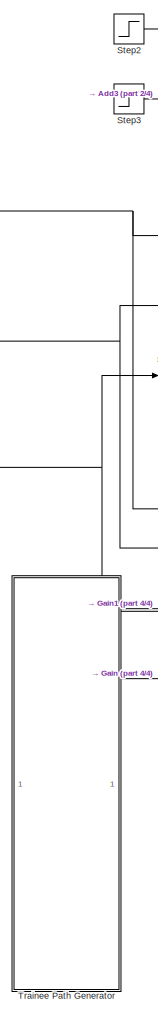
[diagram: root canvas - part 1/4, left side, full height]
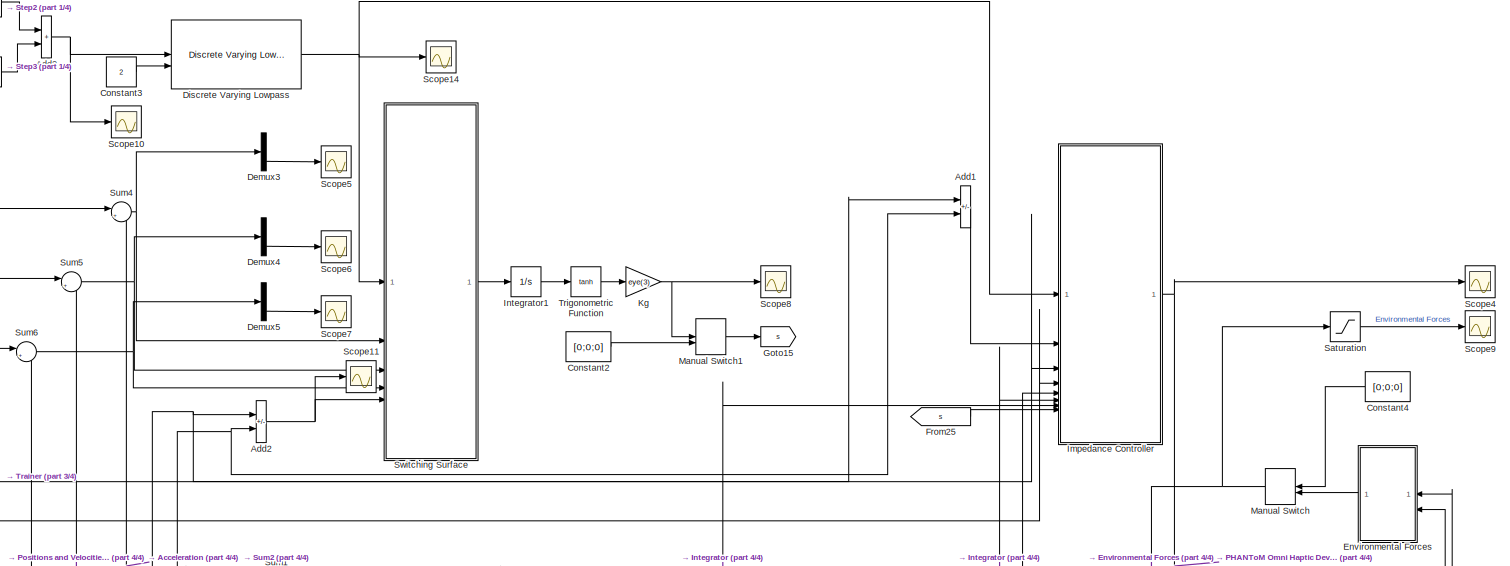
[diagram: root canvas - part 2/4, full width, top band]
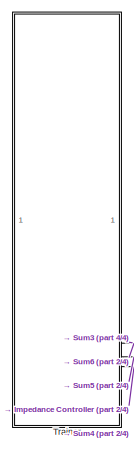
[diagram: root canvas - part 3/4, middle left region]
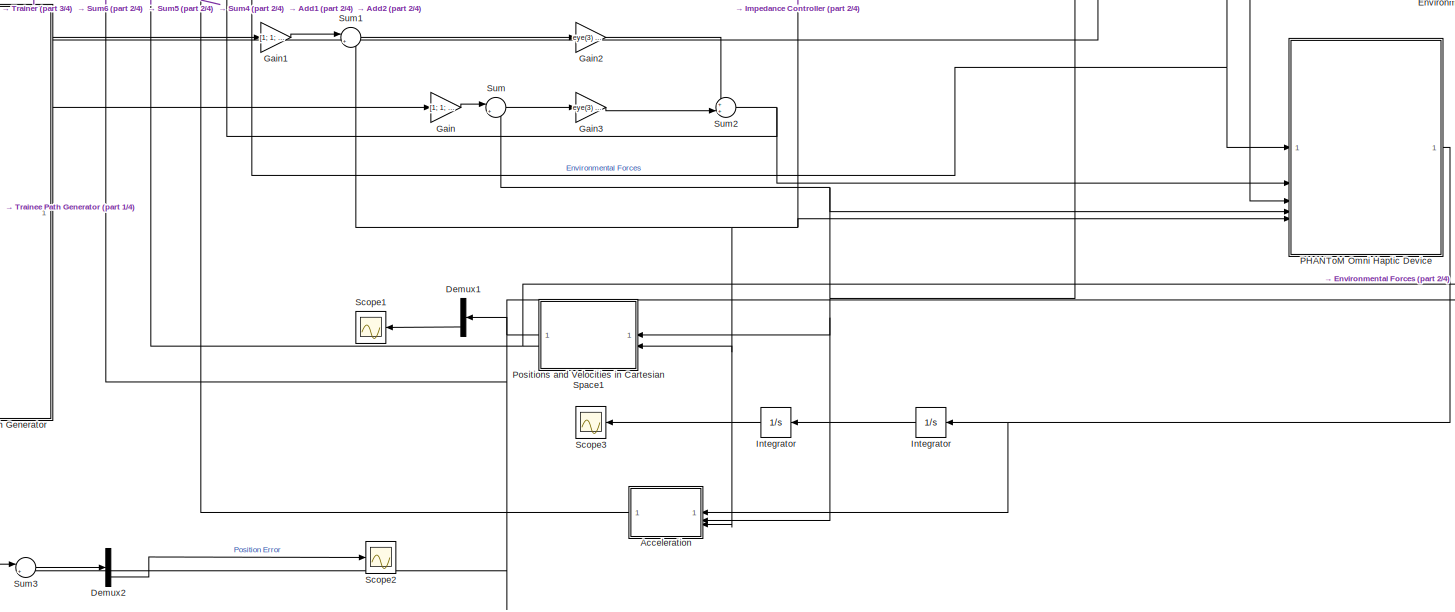
[diagram: root canvas - part 4/4, bottom center region]
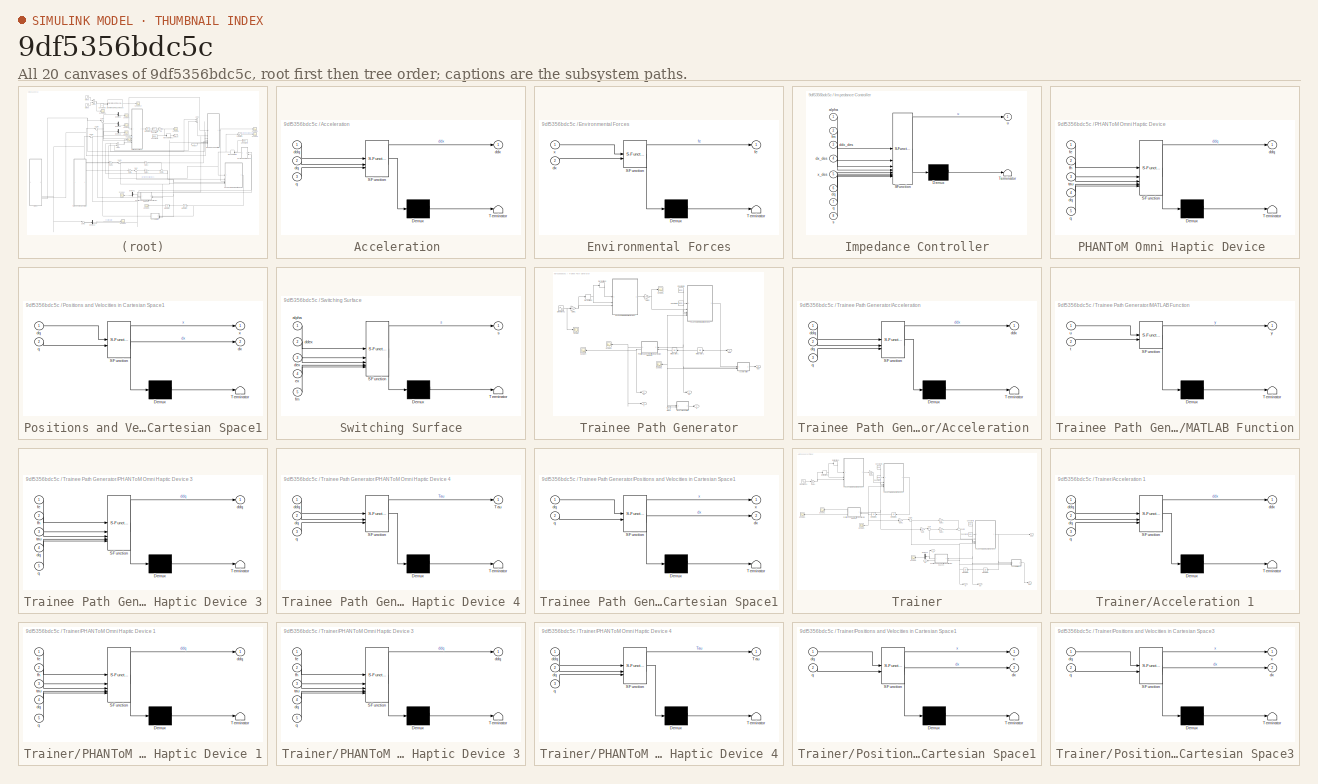
[diagram: thumbnail index - all 20 canvases of the model, root first then tree order]
MODEL slx_9df5356bdc5c
KIND model
CONFIG AbsTol = auto
CONFIG EnableMultiTasking = off
CONFIG FixedStep = auto
CONFIG MaxStep = auto
CONFIG MinStep = auto
CONFIG RelTol = 1e-3
CONFIG SampleTimeConstraint = Unconstrained
CONFIG SolverName = VariableStepAuto
CONFIG StartTime = 0.0
CONFIG StopTime = 5
BLOCK [SubSystem] Acceleration 
  ErrorFcn = Stateflow.Translate.translate
  PermitHierarchicalResolution = ExplicitOnly
  SFBlockType = MATLAB Function
  TreatAsAtomicUnit = on
BLOCK [Demux] Acceleration / Demux 
  Outputs = 1
BLOCK [S-Function] Acceleration / SFunction 
  EnableBusSupport = on
  FunctionName = sf_sfun
  PortCounts = [3 2]
  SFcnIsStateOwnerBlock = off
  SFunctionDeploymentMode = off
  Tag = Stateflow S-Function 2
BLOCK [Terminator] Acceleration / Terminator 
BLOCK [Inport] Acceleration /ddq
BLOCK [Outport] Acceleration /ddx
  VectorParamsAs1DForOutWhenUnconnected = off
BLOCK [Inport] Acceleration /dq
  Port = 2
BLOCK [Inport] Acceleration /q
  Port = 3
BLOCK [Sum] Add1
  IconShape = rectangular
  Inputs = +-
BLOCK [Sum] Add2
  IconShape = rectangular
  Inputs = +-
BLOCK [Sum] Add3
  IconShape = rectangular
BLOCK [Constant] Constant2
  Value = [0;0;0]
BLOCK [Constant] Constant3
  Value = 2
BLOCK [Constant] Constant4
  Value = [0;0;0]
BLOCK [Demux] Demux1
  Outputs = 3
BLOCK [Demux] Demux2
  Outputs = 3
BLOCK [Demux] Demux3
  Outputs = 3
BLOCK [Demux] Demux4
  Outputs = 3
BLOCK [Demux] Demux5
  Outputs = 3
BLOCK [Reference] Discrete Varying Lowpass  REF=cstblocks/Linear Parameter Varying/Discrete Varying Lowpass
  SourceBlock = cstblocks/Linear Parameter Varying/Discrete Varying Lowpass
  SourceType = Discrete Varying Lowpass
BLOCK [SubSystem] Environmental Forces
  ErrorFcn = Stateflow.Translate.translate
  NameLocation = top
  PermitHierarchicalResolution = ExplicitOnly
  SFBlockType = MATLAB Function
  TreatAsAtomicUnit = on
BLOCK [Demux] Environmental Forces/ Demux 
  Outputs = 1
BLOCK [S-Function] Environmental Forces/ SFunction 
  EnableBusSupport = on
  FunctionName = sf_sfun
  PortCounts = [2 2]
  SFcnIsStateOwnerBlock = off
  SFunctionDeploymentMode = off
  Tag = Stateflow S-Function 9
BLOCK [Terminator] Environmental Forces/ Terminator 
BLOCK [Inport] Environmental Forces/dx
  Port = 2
BLOCK [Outport] Environmental Forces/fe
  VectorParamsAs1DForOutWhenUnconnected = off
BLOCK [Inport] Environmental Forces/x
BLOCK [From] From25
  GotoTag = s
BLOCK [Gain] Gain
  Gain = [1; 1; 1]
BLOCK [Gain] Gain1
  Gain = [1; 1; 1]
BLOCK [Gain] Gain2
  Gain = eye(3) * 0.05
  Multiplication = Matrix(K*u)
BLOCK [Gain] Gain3
  Gain = eye(3) * 0.01
  Multiplication = Matrix(K*u)
BLOCK [Goto] Goto15
  GotoTag = s
BLOCK [SubSystem] Impedance Controller
  ErrorFcn = Stateflow.Translate.translate
  PermitHierarchicalResolution = ExplicitOnly
  SFBlockType = MATLAB Function
  TreatAsAtomicUnit = on
BLOCK [Demux] Impedance Controller/ Demux 
  Outputs = 1
BLOCK [S-Function] Impedance Controller/ SFunction 
  EnableBusSupport = on
  FunctionName = sf_sfun
  PortCounts = [8 2]
  SFcnIsStateOwnerBlock = off
  SFunctionDeploymentMode = off
  Tag = Stateflow S-Function 13
BLOCK [Terminator] Impedance Controller/ Terminator 
BLOCK [Inport] Impedance Controller/alpha
BLOCK [Inport] Impedance Controller/ddx_des
  Port = 3
BLOCK [Inport] Impedance Controller/dq
  Port = 6
BLOCK [Inport] Impedance Controller/dx_des
  Port = 4
BLOCK [Inport] Impedance Controller/fm
  Port = 2
BLOCK [Inport] Impedance Controller/q
  Port = 7
BLOCK [Inport] Impedance Controller/s
  Port = 8
BLOCK [Outport] Impedance Controller/u
  VectorParamsAs1DForOutWhenUnconnected = off
BLOCK [Inport] Impedance Controller/x_des
  Port = 5
BLOCK [Integrator] Integrator
  InitialCondition = [0;0;0]
BLOCK [Integrator] Integrator 
  InitialCondition = [-0.1746    0.7011    0.5365]'
BLOCK [Integrator] Integrator1
  InitialCondition = [0;0;0]
BLOCK [Gain] Kg
  Gain = eye(3)
  Multiplication = Matrix(K*u)
BLOCK [ManualSwitch] Manual Switch
  CurrentSetting = 0
BLOCK [ManualSwitch] Manual Switch1
BLOCK [SubSystem] PHANToM Omni Haptic Device 
  ErrorFcn = Stateflow.Translate.translate
  PermitHierarchicalResolution = ExplicitOnly
  SFBlockType = MATLAB Function
  TreatAsAtomicUnit = on
BLOCK [Demux] PHANToM Omni Haptic Device / Demux 
  Outputs = 1
BLOCK [S-Function] PHANToM Omni Haptic Device / SFunction 
  EnableBusSupport = on
  FunctionName = sf_sfun
  PortCounts = [5 2]
  SFcnIsStateOwnerBlock = off
  SFunctionDeploymentMode = off
  Tag = Stateflow S-Function 11
BLOCK [Terminator] PHANToM Omni Haptic Device / Terminator 
BLOCK [Outport] PHANToM Omni Haptic Device /ddq
  VectorParamsAs1DForOutWhenUnconnected = off
BLOCK [Inport] PHANToM Omni Haptic Device /dq
  Port = 4
BLOCK [Inport] PHANToM Omni Haptic Device /fe
BLOCK [Inport] PHANToM Omni Haptic Device /fh
  Port = 2
BLOCK [Inport] PHANToM Omni Haptic Device /q
  Port = 5
BLOCK [Inport] PHANToM Omni Haptic Device /tau
  Port = 3
BLOCK [SubSystem] Positions and Velocities in Cartesian Space1
  ErrorFcn = Stateflow.Translate.translate
  PermitHierarchicalResolution = ExplicitOnly
  SFBlockType = MATLAB Function
  TreatAsAtomicUnit = on
BLOCK [Demux] Positions and Velocities in Cartesian Space1/ Demux 
  Outputs = 1
BLOCK [S-Function] Positions and Velocities in Cartesian Space1/ SFunction 
  EnableBusSupport = on
  FunctionName = sf_sfun
  PortCounts = [2 3]
  SFcnIsStateOwnerBlock = off
  SFunctionDeploymentMode = off
  Tag = Stateflow S-Function 4
BLOCK [Terminator] Positions and Velocities in Cartesian Space1/ Terminator 
BLOCK [Inport] Positions and Velocities in Cartesian Space1/dq
BLOCK [Outport] Positions and Velocities in Cartesian Space1/dx
  Port = 2
  VectorParamsAs1DForOutWhenUnconnected = off
BLOCK [Inport] Positions and Velocities in Cartesian Space1/q
  Port = 2
BLOCK [Outport] Positions and Velocities in Cartesian Space1/x
  VectorParamsAs1DForOutWhenUnconnected = off
BLOCK [Saturate] Saturation
  LowerLimit = 0
BLOCK [Scope] Scope1
  Floating = off
  NumInputPorts = 1
  ScopeSpecificationString = Simulink.scopes.TimeScopeBlockCfg('CurrentConfiguration', extmgr.ConfigurationSet(extmgr.Configuration('Core','General UI',true),extmgr.Configuration('Core','Source UI',true),extmgr.Configuration('Sources','WiredSimulink',true,'DataLoggingVariableName','ScopeData3'),extmgr.Configuration('Visuals','Time Domain',true,'SerializedDisplays',{struct('MinYLimReal','-0.11938','MaxYLimReal','0.03444','YLab...<+1390ch>
BLOCK [Scope] Scope10
  Floating = off
  NumInputPorts = 1
  ScopeSpecificationString = Simulink.scopes.TimeScopeBlockCfg('CurrentConfiguration', extmgr.ConfigurationSet(extmgr.Configuration('Core','General UI',true),extmgr.Configuration('Core','Source UI',true),extmgr.Configuration('Sources','WiredSimulink',true,'DataLoggingVariableName','ScopeData2'),extmgr.Configuration('Visuals','Time Domain',true,'SerializedDisplays',{struct('MinYLimReal','-0.125','MaxYLimReal','1.125','YLabelRe...<+1351ch>
BLOCK [Scope] Scope11
  Floating = off
  NumInputPorts = 1
  ScopeSpecificationString = Simulink.scopes.TimeScopeBlockCfg('CurrentConfiguration', extmgr.ConfigurationSet(extmgr.Configuration('Core','General UI',true),extmgr.Configuration('Core','Source UI',true),extmgr.Configuration('Sources','WiredSimulink',true,'DataLoggingVariableName','ScopeData1'),extmgr.Configuration('Visuals','Time Domain',true,'SerializedDisplays',{struct('MinYLimReal','-0.30248','MaxYLimReal','0.59028','YLab...<+1477ch>
BLOCK [Scope] Scope14
  Floating = off
  NumInputPorts = 1
  ScopeSpecificationString = Simulink.scopes.TimeScopeBlockCfg('CurrentConfiguration', extmgr.ConfigurationSet(extmgr.Configuration('Core','General UI',true),extmgr.Configuration('Core','Source UI',true),extmgr.Configuration('Sources','WiredSimulink',true,'DataLoggingVariableName','ScopeData4'),extmgr.Configuration('Visuals','Time Domain',true,'SerializedDisplays',{struct('MinYLimReal','-0.12271','MaxYLimReal','1.10437','YLab...<+1383ch>
BLOCK [Scope] Scope2
  Floating = off
  NumInputPorts = 1
  ScopeSpecificationString = Simulink.scopes.TimeScopeBlockCfg('CurrentConfiguration', extmgr.ConfigurationSet(extmgr.Configuration('Core','General UI',true),extmgr.Configuration('Core','Source UI',true),extmgr.Configuration('Sources','WiredSimulink',true,'DataLoggingVariableName','ScopeData5'),extmgr.Configuration('Visuals','Time Domain',true,'SerializedDisplays',{struct('MinYLimReal','-0.01061','MaxYLimReal','0.00911','YLab...<+1396ch>
BLOCK [Scope] Scope3
  Floating = off
  NumInputPorts = 1
  ScopeSpecificationString = Simulink.scopes.TimeScopeBlockCfg('CurrentConfiguration', extmgr.ConfigurationSet(extmgr.Configuration('Core','General UI',true),extmgr.Configuration('Core','Source UI',true),extmgr.Configuration('Sources','WiredSimulink',true,'DataLoggingVariableName','ScopeData6'),extmgr.Configuration('Visuals','Time Domain',true,'SerializedDisplays',{struct('MinYLimReal','-0.67482','MaxYLimReal','0.89016','YLab...<+1429ch>
BLOCK [Scope] Scope4
  Floating = off
  NumInputPorts = 1
  ScopeSpecificationString = Simulink.scopes.TimeScopeBlockCfg('CurrentConfiguration', extmgr.ConfigurationSet(extmgr.Configuration('Core','General UI',true),extmgr.Configuration('Core','Source UI',true),extmgr.Configuration('Sources','WiredSimulink',true,'DataLoggingVariableName','ScopeData7'),extmgr.Configuration('Visuals','Time Domain',true,'SerializedDisplays',{struct('MinYLimReal','-2.37086','MaxYLimReal','2.2654','YLabe...<+1568ch>
BLOCK [Scope] Scope5
  Floating = off
  NumInputPorts = 1
  ScopeSpecificationString = Simulink.scopes.TimeScopeBlockCfg('CurrentConfiguration', extmgr.ConfigurationSet(extmgr.Configuration('Core','General UI',true),extmgr.Configuration('Core','Source UI',true),extmgr.Configuration('Sources','WiredSimulink',true,'DataLoggingVariableName','ScopeData8'),extmgr.Configuration('Visuals','Time Domain',true,'SerializedDisplays',{struct('MinYLimReal','-105.90779','MaxYLimReal','60.21955','Y...<+1450ch>
BLOCK [Scope] Scope6
  Floating = off
  NumInputPorts = 1
  ScopeSpecificationString = Simulink.scopes.TimeScopeBlockCfg('CurrentConfiguration', extmgr.ConfigurationSet(extmgr.Configuration('Core','General UI',true),extmgr.Configuration('Core','Source UI',true),extmgr.Configuration('Sources','WiredSimulink',true,'DataLoggingVariableName','ScopeData9'),extmgr.Configuration('Visuals','Time Domain',true,'SerializedDisplays',{struct('MinYLimReal','-0.74603','MaxYLimReal','0.43543','YLab...<+1419ch>
BLOCK [Scope] Scope7
  Floating = off
  NumInputPorts = 1
  ScopeSpecificationString = Simulink.scopes.TimeScopeBlockCfg('CurrentConfiguration', extmgr.ConfigurationSet(extmgr.Configuration('Core','General UI',true),extmgr.Configuration('Core','Source UI',true),extmgr.Configuration('Sources','WiredSimulink',true,'DataLoggingVariableName','ScopeData10'),extmgr.Configuration('Visuals','Time Domain',true,'SerializedDisplays',{struct('MinYLimReal','-0.01061','MaxYLimReal','0.00911','YLa...<+1420ch>
BLOCK [Scope] Scope8
  Floating = off
  NumInputPorts = 1
  ScopeSpecificationString = Simulink.scopes.TimeScopeBlockCfg('CurrentConfiguration', extmgr.ConfigurationSet(extmgr.Configuration('Core','General UI',true),extmgr.Configuration('Core','Source UI',true),extmgr.Configuration('Sources','WiredSimulink',true,'DataLoggingVariableName','ScopeData11'),extmgr.Configuration('Visuals','Time Domain',true,'SerializedDisplays',{struct('MinYLimReal','-1.25','MaxYLimReal','1.25','YLabelRea...<+1431ch>
BLOCK [Scope] Scope9
  Floating = off
  NumInputPorts = 1
  ScopeSpecificationString = Simulink.scopes.TimeScopeBlockCfg('CurrentConfiguration', extmgr.ConfigurationSet(extmgr.Configuration('Core','General UI',true),extmgr.Configuration('Core','Source UI',true),extmgr.Configuration('Sources','WiredSimulink',true,'DataLoggingVariableName','ScopeData12'),extmgr.Configuration('Visuals','Time Domain',true,'SerializedDisplays',{struct('MinYLimReal','-0.23513','MaxYLimReal','0.24562','YLa...<+1651ch>
BLOCK [Step] Step2
  SampleTime = 0
BLOCK [Step] Step3
  After = -1
  SampleTime = 0
  Time = 3
BLOCK [Sum] Sum
  Inputs = |+-
BLOCK [Sum] Sum1
  Inputs = |+-
BLOCK [Sum] Sum2
  Inputs = ++|
BLOCK [Sum] Sum3
  Inputs = |+-
BLOCK [Sum] Sum4
  Inputs = |+-
BLOCK [Sum] Sum5
  Inputs = |+-
BLOCK [Sum] Sum6
  Inputs = |+-
BLOCK [SubSystem] Switching Surface
  ErrorFcn = Stateflow.Translate.translate
  PermitHierarchicalResolution = ExplicitOnly
  SFBlockType = MATLAB Function
  TreatAsAtomicUnit = on
BLOCK [Demux] Switching Surface/ Demux 
  Outputs = 1
BLOCK [S-Function] Switching Surface/ SFunction 
  EnableBusSupport = on
  FunctionName = sf_sfun
  PortCounts = [5 2]
  SFcnIsStateOwnerBlock = off
  SFunctionDeploymentMode = off
  Tag = Stateflow S-Function 18
BLOCK [Terminator] Switching Surface/ Terminator 
BLOCK [Inport] Switching Surface/alpha
BLOCK [Inport] Switching Surface/ddex
  Port = 2
BLOCK [Inport] Switching Surface/dex
  Port = 3
BLOCK [Inport] Switching Surface/ex
  Port = 4
BLOCK [Inport] Switching Surface/fm
  Port = 5
BLOCK [Outport] Switching Surface/s
  VectorParamsAs1DForOutWhenUnconnected = off
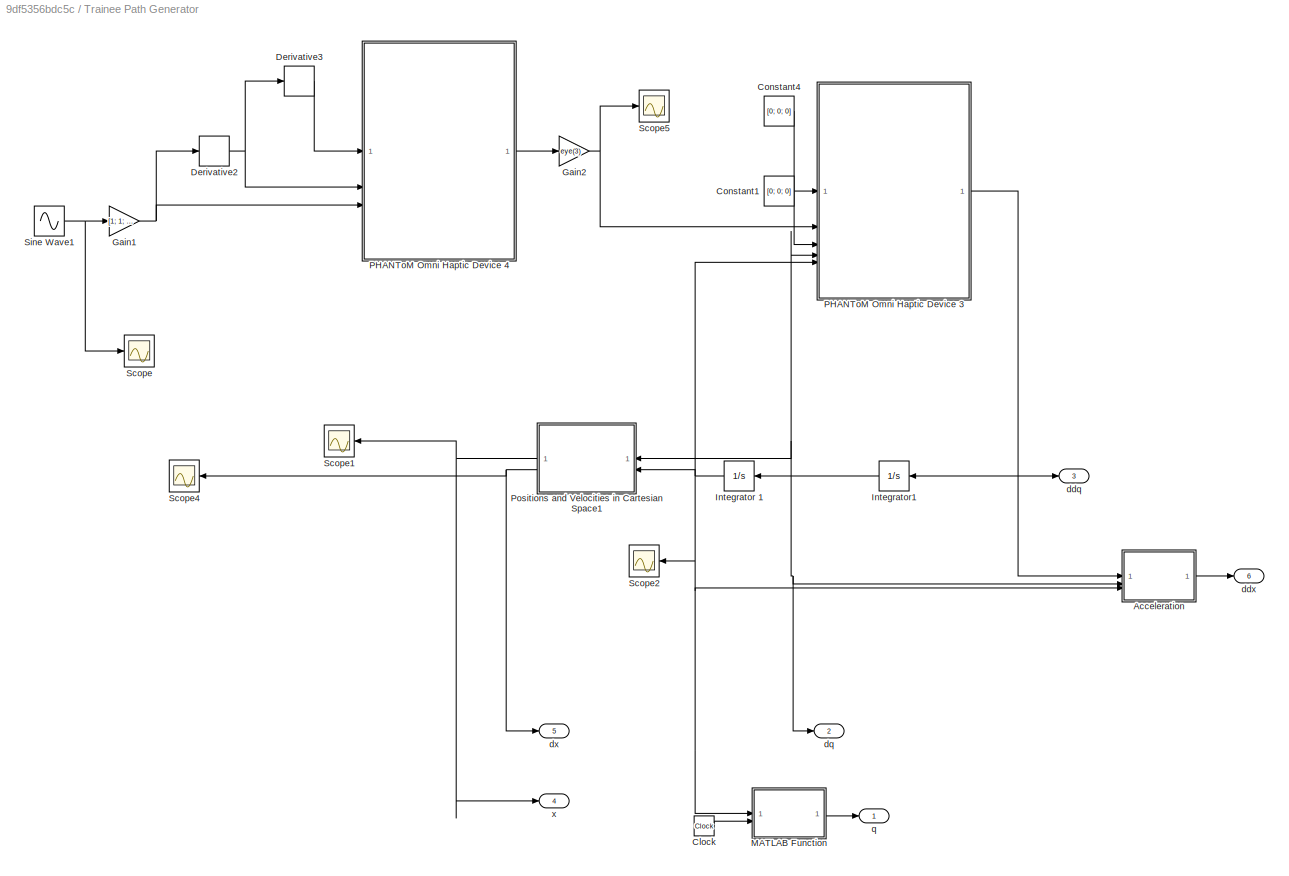
BLOCK [SubSystem] Trainee Path Generator
BLOCK [SubSystem] Trainee Path Generator/Acceleration 
  ErrorFcn = Stateflow.Translate.translate
  PermitHierarchicalResolution = ExplicitOnly
  SFBlockType = MATLAB Function
  TreatAsAtomicUnit = on
BLOCK [Demux] Trainee Path Generator/Acceleration / Demux 
  Outputs = 1
BLOCK [S-Function] Trainee Path Generator/Acceleration / SFunction 
  EnableBusSupport = on
  FunctionName = sf_sfun
  PortCounts = [3 2]
  SFcnIsStateOwnerBlock = off
  SFunctionDeploymentMode = off
  Tag = Stateflow S-Function 5
BLOCK [Terminator] Trainee Path Generator/Acceleration / Terminator 
BLOCK [Inport] Trainee Path Generator/Acceleration /ddq
BLOCK [Outport] Trainee Path Generator/Acceleration /ddx
  VectorParamsAs1DForOutWhenUnconnected = off
BLOCK [Inport] Trainee Path Generator/Acceleration /dq
  Port = 2
BLOCK [Inport] Trainee Path Generator/Acceleration /q
  Port = 3
BLOCK [Clock] Trainee Path Generator/Clock
BLOCK [Constant] Trainee Path Generator/Constant1
  Value = [0; 0; 0]
BLOCK [Constant] Trainee Path Generator/Constant4
  Value = [0; 0; 0]
BLOCK [Derivative] Trainee Path Generator/Derivative2
BLOCK [Derivative] Trainee Path Generator/Derivative3
BLOCK [Gain] Trainee Path Generator/Gain1
  Gain = [1; 1; 1]
BLOCK [Gain] Trainee Path Generator/Gain2
  Gain = eye(3)
  Multiplication = Matrix(K*u)
BLOCK [Integrator] Trainee Path Generator/Integrator 1
  InitialCondition = [-0.1746    0.7011    0.5365]'
BLOCK [Integrator] Trainee Path Generator/Integrator1
  InitialCondition = [0;0;0]
BLOCK [SubSystem] Trainee Path Generator/MATLAB Function
  ErrorFcn = Stateflow.Translate.translate
  PermitHierarchicalResolution = ExplicitOnly
  SFBlockType = MATLAB Function
  TreatAsAtomicUnit = on
BLOCK [Demux] Trainee Path Generator/MATLAB Function/ Demux 
  Outputs = 1
BLOCK [S-Function] Trainee Path Generator/MATLAB Function/ SFunction 
  EnableBusSupport = on
  FunctionName = sf_sfun
  PortCounts = [2 2]
  SFcnIsStateOwnerBlock = off
  SFunctionDeploymentMode = off
  Tag = Stateflow S-Function 10
BLOCK [Terminator] Trainee Path Generator/MATLAB Function/ Terminator 
BLOCK [Inport] Trainee Path Generator/MATLAB Function/t
  Port = 2
BLOCK [Inport] Trainee Path Generator/MATLAB Function/u
BLOCK [Outport] Trainee Path Generator/MATLAB Function/y
  VectorParamsAs1DForOutWhenUnconnected = off
BLOCK [SubSystem] Trainee Path Generator/PHANToM Omni Haptic Device 3
  ErrorFcn = Stateflow.Translate.translate
  PermitHierarchicalResolution = ExplicitOnly
  SFBlockType = MATLAB Function
  TreatAsAtomicUnit = on
BLOCK [Demux] Trainee Path Generator/PHANToM Omni Haptic Device 3/ Demux 
  Outputs = 1
BLOCK [S-Function] Trainee Path Generator/PHANToM Omni Haptic Device 3/ SFunction 
  EnableBusSupport = on
  FunctionName = sf_sfun
  PortCounts = [5 2]
  SFcnIsStateOwnerBlock = off
  SFunctionDeploymentMode = off
  Tag = Stateflow S-Function 14
BLOCK [Terminator] Trainee Path Generator/PHANToM Omni Haptic Device 3/ Terminator 
BLOCK [Outport] Trainee Path Generator/PHANToM Omni Haptic Device 3/ddq
  VectorParamsAs1DForOutWhenUnconnected = off
BLOCK [Inport] Trainee Path Generator/PHANToM Omni Haptic Device 3/dq
  Port = 4
BLOCK [Inport] Trainee Path Generator/PHANToM Omni Haptic Device 3/fe
BLOCK [Inport] Trainee Path Generator/PHANToM Omni Haptic Device 3/fh
  Port = 2
BLOCK [Inport] Trainee Path Generator/PHANToM Omni Haptic Device 3/q
  Port = 5
BLOCK [Inport] Trainee Path Generator/PHANToM Omni Haptic Device 3/tau
  Port = 3
BLOCK [SubSystem] Trainee Path Generator/PHANToM Omni Haptic Device 4
  ErrorFcn = Stateflow.Translate.translate
  PermitHierarchicalResolution = ExplicitOnly
  SFBlockType = MATLAB Function
  TreatAsAtomicUnit = on
BLOCK [Demux] Trainee Path Generator/PHANToM Omni Haptic Device 4/ Demux 
  Outputs = 1
BLOCK [S-Function] Trainee Path Generator/PHANToM Omni Haptic Device 4/ SFunction 
  EnableBusSupport = on
  FunctionName = sf_sfun
  PortCounts = [3 2]
  SFcnIsStateOwnerBlock = off
  SFunctionDeploymentMode = off
  Tag = Stateflow S-Function 15
BLOCK [Terminator] Trainee Path Generator/PHANToM Omni Haptic Device 4/ Terminator 
BLOCK [Outport] Trainee Path Generator/PHANToM Omni Haptic Device 4/Tau
  VectorParamsAs1DForOutWhenUnconnected = off
BLOCK [Inport] Trainee Path Generator/PHANToM Omni Haptic Device 4/ddq
BLOCK [Inport] Trainee Path Generator/PHANToM Omni Haptic Device 4/dq
  Port = 2
BLOCK [Inport] Trainee Path Generator/PHANToM Omni Haptic Device 4/q
  Port = 3
BLOCK [SubSystem] Trainee Path Generator/Positions and Velocities in Cartesian Space1
  ErrorFcn = Stateflow.Translate.translate
  PermitHierarchicalResolution = ExplicitOnly
  SFBlockType = MATLAB Function
  TreatAsAtomicUnit = on
BLOCK [Demux] Trainee Path Generator/Positions and Velocities in Cartesian Space1/ Demux 
  Outputs = 1
BLOCK [S-Function] Trainee Path Generator/Positions and Velocities in Cartesian Space1/ SFunction 
  EnableBusSupport = on
  FunctionName = sf_sfun
  PortCounts = [2 3]
  SFcnIsStateOwnerBlock = off
  SFunctionDeploymentMode = off
  Tag = Stateflow S-Function 8
BLOCK [Terminator] Trainee Path Generator/Positions and Velocities in Cartesian Space1/ Terminator 
BLOCK [Inport] Trainee Path Generator/Positions and Velocities in Cartesian Space1/dq
BLOCK [Outport] Trainee Path Generator/Positions and Velocities in Cartesian Space1/dx
  Port = 2
  VectorParamsAs1DForOutWhenUnconnected = off
BLOCK [Inport] Trainee Path Generator/Positions and Velocities in Cartesian Space1/q
  Port = 2
BLOCK [Outport] Trainee Path Generator/Positions and Velocities in Cartesian Space1/x
  VectorParamsAs1DForOutWhenUnconnected = off
BLOCK [Scope] Trainee Path Generator/Scope
  Floating = off
  NumInputPorts = 1
  ScopeSpecificationString = Simulink.scopes.TimeScopeBlockCfg('CurrentConfiguration', extmgr.ConfigurationSet(extmgr.Configuration('Core','General UI',true),extmgr.Configuration('Core','Source UI',true),extmgr.Configuration('Sources','WiredSimulink',true,'DataLoggingVariableName','ScopeData1'),extmgr.Configuration('Visuals','Time Domain',true,'SerializedDisplays',{struct('MinYLimReal','-0.00125','MaxYLimReal','0.01125','YLab...<+1367ch>
BLOCK [Scope] Trainee Path Generator/Scope1
  Floating = off
  NumInputPorts = 1
  ScopeSpecificationString = Simulink.scopes.TimeScopeBlockCfg('CurrentConfiguration', extmgr.ConfigurationSet(extmgr.Configuration('Core','General UI',true),extmgr.Configuration('Core','Source UI',true),extmgr.Configuration('Sources','WiredSimulink',true,'DataLoggingVariableName','ScopeData2'),extmgr.Configuration('Visuals','Time Domain',true,'SerializedDisplays',{struct('MinYLimReal','-0.20847','MaxYLimReal','0.05599','YLab...<+1535ch>
BLOCK [Scope] Trainee Path Generator/Scope2
  Floating = off
  NumInputPorts = 1
  ScopeSpecificationString = Simulink.scopes.TimeScopeBlockCfg('CurrentConfiguration', extmgr.ConfigurationSet(extmgr.Configuration('Core','General UI',true),extmgr.Configuration('Core','Source UI',true),extmgr.Configuration('Sources','WiredSimulink',true,'DataLoggingVariableName','ScopeData3'),extmgr.Configuration('Visuals','Time Domain',true,'SerializedDisplays',{struct('MinYLimReal','-0.80527','MaxYLimReal','0.86848','YLab...<+1432ch>
BLOCK [Scope] Trainee Path Generator/Scope4
  Floating = off
  NumInputPorts = 1
  ScopeSpecificationString = Simulink.scopes.TimeScopeBlockCfg('CurrentConfiguration', extmgr.ConfigurationSet(extmgr.Configuration('Core','General UI',true),extmgr.Configuration('Core','Source UI',true),extmgr.Configuration('Sources','WiredSimulink',true,'DataLoggingVariableName','ScopeData1'),extmgr.Configuration('Visuals','Time Domain',true,'SerializedDisplays',{struct('MinYLimReal','-0.1443','MaxYLimReal','0.05151','YLabe...<+1533ch>
BLOCK [Scope] Trainee Path Generator/Scope5
  Floating = off
  NumInputPorts = 1
  ScopeSpecificationString = Simulink.scopes.TimeScopeBlockCfg('CurrentConfiguration', extmgr.ConfigurationSet(extmgr.Configuration('Core','General UI',true),extmgr.Configuration('Core','Source UI',true),extmgr.Configuration('Sources','WiredSimulink',true,'DataLoggingVariableName','ScopeData5'),extmgr.Configuration('Visuals','Time Domain',true,'SerializedDisplays',{struct('MinYLimReal','-88424031071073597010207569927262117716...<+3867ch>
BLOCK [Sin] Trainee Path Generator/Sine Wave1
  Amplitude = 0.01
  Frequency = 0.5
  SampleTime = 0
BLOCK [Outport] Trainee Path Generator/ddq
  Port = 3
  VectorParamsAs1DForOutWhenUnconnected = off
BLOCK [Outport] Trainee Path Generator/ddx
  Port = 6
  VectorParamsAs1DForOutWhenUnconnected = off
BLOCK [Outport] Trainee Path Generator/dq
  Port = 2
  VectorParamsAs1DForOutWhenUnconnected = off
BLOCK [Outport] Trainee Path Generator/dx
  Port = 5
  VectorParamsAs1DForOutWhenUnconnected = off
BLOCK [Outport] Trainee Path Generator/q
  VectorParamsAs1DForOutWhenUnconnected = off
BLOCK [Outport] Trainee Path Generator/x
  Port = 4
  VectorParamsAs1DForOutWhenUnconnected = off
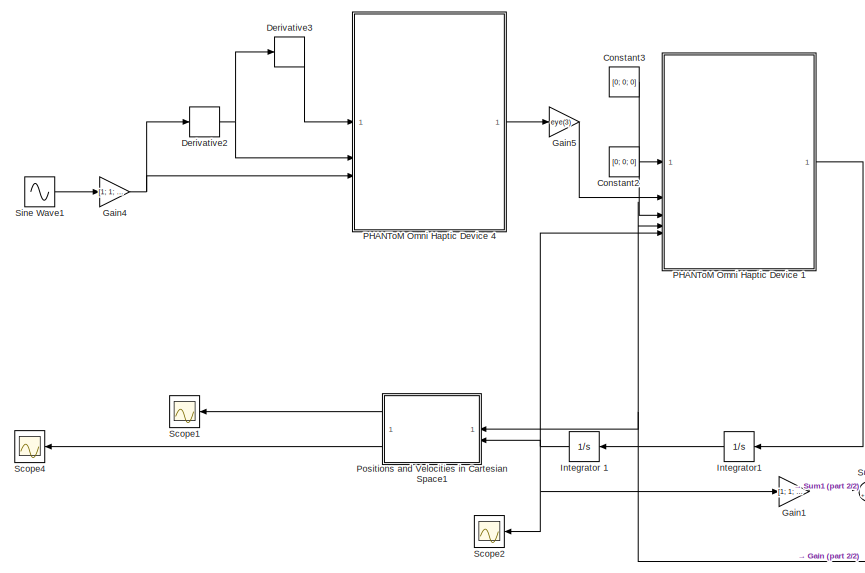
[diagram: Trainer - part 1/2, top left region]
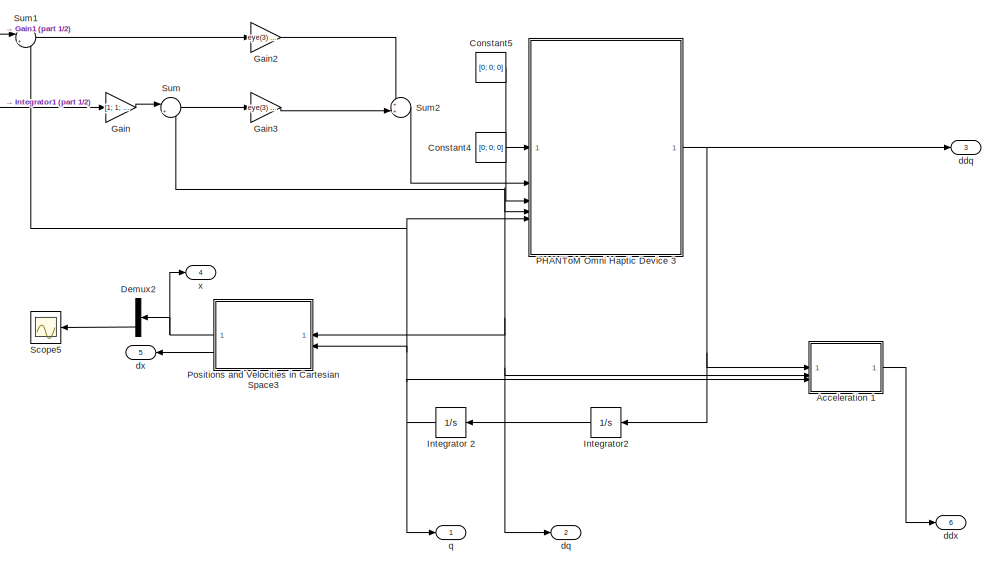
[diagram: Trainer - part 2/2, bottom right region]
BLOCK [SubSystem] Trainer
BLOCK [SubSystem] Trainer/Acceleration 1
  ErrorFcn = Stateflow.Translate.translate
  PermitHierarchicalResolution = ExplicitOnly
  SFBlockType = MATLAB Function
  TreatAsAtomicUnit = on
BLOCK [Demux] Trainer/Acceleration 1/ Demux 
  Outputs = 1
BLOCK [S-Function] Trainer/Acceleration 1/ SFunction 
  EnableBusSupport = on
  FunctionName = sf_sfun
  PortCounts = [3 2]
  SFcnIsStateOwnerBlock = off
  SFunctionDeploymentMode = off
  Tag = Stateflow S-Function 16
BLOCK [Terminator] Trainer/Acceleration 1/ Terminator 
BLOCK [Inport] Trainer/Acceleration 1/ddq
BLOCK [Outport] Trainer/Acceleration 1/ddx
  VectorParamsAs1DForOutWhenUnconnected = off
BLOCK [Inport] Trainer/Acceleration 1/dq
  Port = 2
BLOCK [Inport] Trainer/Acceleration 1/q
  Port = 3
BLOCK [Constant] Trainer/Constant2
  Value = [0; 0; 0]
BLOCK [Constant] Trainer/Constant3
  Value = [0; 0; 0]
BLOCK [Constant] Trainer/Constant4
  Value = [0; 0; 0]
BLOCK [Constant] Trainer/Constant5
  Value = [0; 0; 0]
BLOCK [Demux] Trainer/Demux2
  Outputs = 3
BLOCK [Derivative] Trainer/Derivative2
BLOCK [Derivative] Trainer/Derivative3
BLOCK [Gain] Trainer/Gain
  Gain = [1; 1; 1]
BLOCK [Gain] Trainer/Gain1
  Gain = [1; 1; 1]
BLOCK [Gain] Trainer/Gain2
  Gain = eye(3) * 0.05
  Multiplication = Matrix(K*u)
BLOCK [Gain] Trainer/Gain3
  Gain = eye(3) * 0.01
  Multiplication = Matrix(K*u)
BLOCK [Gain] Trainer/Gain4
  Gain = [1; 1; 1]
BLOCK [Gain] Trainer/Gain5
  Gain = eye(3)
  Multiplication = Matrix(K*u)
BLOCK [Integrator] Trainer/Integrator 1
  InitialCondition = [-0.1746    0.7011    0.5365]'
BLOCK [Integrator] Trainer/Integrator 2
  InitialCondition = [-0.1746    0.7011    0.5365]'
BLOCK [Integrator] Trainer/Integrator1
  InitialCondition = [0;0;0]
BLOCK [Integrator] Trainer/Integrator2
  InitialCondition = [0;0;0]
BLOCK [SubSystem] Trainer/PHANToM Omni Haptic Device 1
  ErrorFcn = Stateflow.Translate.translate
  PermitHierarchicalResolution = ExplicitOnly
  SFBlockType = MATLAB Function
  TreatAsAtomicUnit = on
BLOCK [Demux] Trainer/PHANToM Omni Haptic Device 1/ Demux 
  Outputs = 1
BLOCK [S-Function] Trainer/PHANToM Omni Haptic Device 1/ SFunction 
  EnableBusSupport = on
  FunctionName = sf_sfun
  PortCounts = [5 2]
  SFcnIsStateOwnerBlock = off
  SFunctionDeploymentMode = off
  Tag = Stateflow S-Function 3
BLOCK [Terminator] Trainer/PHANToM Omni Haptic Device 1/ Terminator 
BLOCK [Outport] Trainer/PHANToM Omni Haptic Device 1/ddq
  VectorParamsAs1DForOutWhenUnconnected = off
BLOCK [Inport] Trainer/PHANToM Omni Haptic Device 1/dq
  Port = 4
BLOCK [Inport] Trainer/PHANToM Omni Haptic Device 1/fe
BLOCK [Inport] Trainer/PHANToM Omni Haptic Device 1/fh
  Port = 2
BLOCK [Inport] Trainer/PHANToM Omni Haptic Device 1/q
  Port = 5
BLOCK [Inport] Trainer/PHANToM Omni Haptic Device 1/tau
  Port = 3
BLOCK [SubSystem] Trainer/PHANToM Omni Haptic Device 3
  ErrorFcn = Stateflow.Translate.translate
  PermitHierarchicalResolution = ExplicitOnly
  SFBlockType = MATLAB Function
  TreatAsAtomicUnit = on
BLOCK [Demux] Trainer/PHANToM Omni Haptic Device 3/ Demux 
  Outputs = 1
BLOCK [S-Function] Trainer/PHANToM Omni Haptic Device 3/ SFunction 
  EnableBusSupport = on
  FunctionName = sf_sfun
  PortCounts = [5 2]
  SFcnIsStateOwnerBlock = off
  SFunctionDeploymentMode = off
  Tag = Stateflow S-Function 6
BLOCK [Terminator] Trainer/PHANToM Omni Haptic Device 3/ Terminator 
BLOCK [Outport] Trainer/PHANToM Omni Haptic Device 3/ddq
  VectorParamsAs1DForOutWhenUnconnected = off
BLOCK [Inport] Trainer/PHANToM Omni Haptic Device 3/dq
  Port = 4
BLOCK [Inport] Trainer/PHANToM Omni Haptic Device 3/fe
BLOCK [Inport] Trainer/PHANToM Omni Haptic Device 3/fh
  Port = 2
BLOCK [Inport] Trainer/PHANToM Omni Haptic Device 3/q
  Port = 5
BLOCK [Inport] Trainer/PHANToM Omni Haptic Device 3/tau
  Port = 3
BLOCK [SubSystem] Trainer/PHANToM Omni Haptic Device 4
  ErrorFcn = Stateflow.Translate.translate
  PermitHierarchicalResolution = ExplicitOnly
  SFBlockType = MATLAB Function
  TreatAsAtomicUnit = on
BLOCK [Demux] Trainer/PHANToM Omni Haptic Device 4/ Demux 
  Outputs = 1
BLOCK [S-Function] Trainer/PHANToM Omni Haptic Device 4/ SFunction 
  EnableBusSupport = on
  FunctionName = sf_sfun
  PortCounts = [3 2]
  SFcnIsStateOwnerBlock = off
  SFunctionDeploymentMode = off
  Tag = Stateflow S-Function 1
BLOCK [Terminator] Trainer/PHANToM Omni Haptic Device 4/ Terminator 
BLOCK [Outport] Trainer/PHANToM Omni Haptic Device 4/Tau
  VectorParamsAs1DForOutWhenUnconnected = off
BLOCK [Inport] Trainer/PHANToM Omni Haptic Device 4/ddq
BLOCK [Inport] Trainer/PHANToM Omni Haptic Device 4/dq
  Port = 2
BLOCK [Inport] Trainer/PHANToM Omni Haptic Device 4/q
  Port = 3
BLOCK [SubSystem] Trainer/Positions and Velocities in Cartesian Space1
  ErrorFcn = Stateflow.Translate.translate
  PermitHierarchicalResolution = ExplicitOnly
  SFBlockType = MATLAB Function
  TreatAsAtomicUnit = on
BLOCK [Demux] Trainer/Positions and Velocities in Cartesian Space1/ Demux 
  Outputs = 1
BLOCK [S-Function] Trainer/Positions and Velocities in Cartesian Space1/ SFunction 
  EnableBusSupport = on
  FunctionName = sf_sfun
  PortCounts = [2 3]
  SFcnIsStateOwnerBlock = off
  SFunctionDeploymentMode = off
  Tag = Stateflow S-Function 12
BLOCK [Terminator] Trainer/Positions and Velocities in Cartesian Space1/ Terminator 
BLOCK [Inport] Trainer/Positions and Velocities in Cartesian Space1/dq
BLOCK [Outport] Trainer/Positions and Velocities in Cartesian Space1/dx
  Port = 2
  VectorParamsAs1DForOutWhenUnconnected = off
BLOCK [Inport] Trainer/Positions and Velocities in Cartesian Space1/q
  Port = 2
BLOCK [Outport] Trainer/Positions and Velocities in Cartesian Space1/x
  VectorParamsAs1DForOutWhenUnconnected = off
BLOCK [SubSystem] Trainer/Positions and Velocities in Cartesian Space3
  ErrorFcn = Stateflow.Translate.translate
  PermitHierarchicalResolution = ExplicitOnly
  SFBlockType = MATLAB Function
  TreatAsAtomicUnit = on
BLOCK [Demux] Trainer/Positions and Velocities in Cartesian Space3/ Demux 
  Outputs = 1
BLOCK [S-Function] Trainer/Positions and Velocities in Cartesian Space3/ SFunction 
  EnableBusSupport = on
  FunctionName = sf_sfun
  PortCounts = [2 3]
  SFcnIsStateOwnerBlock = off
  SFunctionDeploymentMode = off
  Tag = Stateflow S-Function 7
BLOCK [Terminator] Trainer/Positions and Velocities in Cartesian Space3/ Terminator 
BLOCK [Inport] Trainer/Positions and Velocities in Cartesian Space3/dq
BLOCK [Outport] Trainer/Positions and Velocities in Cartesian Space3/dx
  Port = 2
  VectorParamsAs1DForOutWhenUnconnected = off
BLOCK [Inport] Trainer/Positions and Velocities in Cartesian Space3/q
  Port = 2
BLOCK [Outport] Trainer/Positions and Velocities in Cartesian Space3/x
  VectorParamsAs1DForOutWhenUnconnected = off
BLOCK [Scope] Trainer/Scope1
  Floating = off
  NumInputPorts = 1
  ScopeSpecificationString = Simulink.scopes.TimeScopeBlockCfg('CurrentConfiguration', extmgr.ConfigurationSet(extmgr.Configuration('Core','General UI',true),extmgr.Configuration('Core','Source UI',true),extmgr.Configuration('Sources','WiredSimulink',true,'DataLoggingVariableName','ScopeData2'),extmgr.Configuration('Visuals','Time Domain',true,'SerializedDisplays',{struct('MinYLimReal','-0.1443','MaxYLimReal','0.05151','YLabe...<+1533ch>
BLOCK [Scope] Trainer/Scope2
  Floating = off
  NumInputPorts = 1
  ScopeSpecificationString = Simulink.scopes.TimeScopeBlockCfg('CurrentConfiguration', extmgr.ConfigurationSet(extmgr.Configuration('Core','General UI',true),extmgr.Configuration('Core','Source UI',true),extmgr.Configuration('Sources','WiredSimulink',true,'DataLoggingVariableName','ScopeData3'),extmgr.Configuration('Visuals','Time Domain',true,'SerializedDisplays',{struct('MinYLimReal','-0.7829','MaxYLimReal','0.86599','YLabe...<+1430ch>
BLOCK [Scope] Trainer/Scope4
  Floating = off
  NumInputPorts = 1
  ScopeSpecificationString = Simulink.scopes.TimeScopeBlockCfg('CurrentConfiguration', extmgr.ConfigurationSet(extmgr.Configuration('Core','General UI',true),extmgr.Configuration('Core','Source UI',true),extmgr.Configuration('Sources','WiredSimulink',true,'DataLoggingVariableName','ScopeData1'),extmgr.Configuration('Visuals','Time Domain',true,'SerializedDisplays',{struct('MinYLimReal','-0.1443','MaxYLimReal','0.05151','YLabe...<+1533ch>
BLOCK [Scope] Trainer/Scope5
  Floating = off
  NumInputPorts = 1
  ScopeSpecificationString = Simulink.scopes.TimeScopeBlockCfg('CurrentConfiguration', extmgr.ConfigurationSet(extmgr.Configuration('Core','General UI',true),extmgr.Configuration('Core','Source UI',true),extmgr.Configuration('Sources','WiredSimulink',true,'DataLoggingVariableName','ScopeData4'),extmgr.Configuration('Visuals','Time Domain',true,'SerializedDisplays',{struct('MinYLimReal','-0.32118','MaxYLimReal','0.0686','YLabe...<+1390ch>
BLOCK [Sin] Trainer/Sine Wave1
  Amplitude = 0.01
  Frequency = 0.5
  SampleTime = 0
BLOCK [Sum] Trainer/Sum
  Inputs = |+-
BLOCK [Sum] Trainer/Sum1
  Inputs = |+-
BLOCK [Sum] Trainer/Sum2
  Inputs = ++|
BLOCK [Outport] Trainer/ddq
  Port = 3
  VectorParamsAs1DForOutWhenUnconnected = off
BLOCK [Outport] Trainer/ddx
  Port = 6
  VectorParamsAs1DForOutWhenUnconnected = off
BLOCK [Outport] Trainer/dq
  Port = 2
  VectorParamsAs1DForOutWhenUnconnected = off
BLOCK [Outport] Trainer/dx
  Port = 5
  VectorParamsAs1DForOutWhenUnconnected = off
BLOCK [Outport] Trainer/q
  VectorParamsAs1DForOutWhenUnconnected = off
BLOCK [Outport] Trainer/x
  Port = 4
  VectorParamsAs1DForOutWhenUnconnected = off
BLOCK [Trigonometry] Trigonometric Function
  Operator = tanh
LINE Acceleration :1 -> Sum4:2
LINE Add1:1 -> Impedance Controller:2
NET Add2:1 -> Scope11:1, Switching Surface:5
NET Add3:1 -> Discrete Varying Lowpass:1, Scope10:1
LINE Constant2:1 -> Manual Switch1:2
LINE Constant3:1 -> Discrete Varying Lowpass:2
LINE Constant4:1 -> Manual Switch:1
LINE Demux1:3 -> Scope1:1
LINE Demux2:3 -> Scope2:1
LINE Demux3:3 -> Scope5:1
LINE Demux4:3 -> Scope6:1
LINE Demux5:3 -> Scope7:1
NET Discrete Varying Lowpass:1 -> Impedance Controller:1, Scope14:1, Switching Surface:1
LINE Environmental Forces:1 -> Manual Switch:2
LINE From25:1 -> Impedance Controller:8
LINE Gain1:1 -> Sum1:1
LINE Gain2:1 -> Sum2:1
LINE Gain3:1 -> Sum2:2
LINE Gain:1 -> Sum:1
NET Impedance Controller:1 -> PHANToM Omni Haptic Device :3, Scope4:1
NET Integrator :1 -> Acceleration :3, Impedance Controller:7, PHANToM Omni Haptic Device :5, Positions and Velocities in Cartesian Space1:2, Scope3:1, Sum1:2
LINE Integrator1:1 -> Trigonometric Function:1
NET Integrator:1 -> Acceleration :2, Impedance Controller:6, Integrator :1, PHANToM Omni Haptic Device :4, Positions and Velocities in Cartesian Space1:1, Sum:2
NET Kg:1 -> Manual Switch1:1, Scope8:1
LINE Manual Switch1:1 -> Goto15:1
NET Manual Switch:1 -> Add1:2, Add2:2, PHANToM Omni Haptic Device :1, Saturation:1
NET PHANToM Omni Haptic Device :1 -> Acceleration :1, Integrator:1
NET Positions and Velocities in Cartesian Space1:1 -> Demux1:1, Environmental Forces:1, Sum3:2, Sum6:2
NET Positions and Velocities in Cartesian Space1:2 -> Environmental Forces:2, Sum5:2
LINE Saturation:1 -> Scope9:1
LINE Step2:1 -> Add3:1
LINE Step3:1 -> Add3:2
LINE Sum1:1 -> Gain2:1
NET Sum2:1 -> Add1:1, Add2:1, PHANToM Omni Haptic Device :2
LINE Sum3:1 -> Demux2:1
NET Sum4:1 -> Demux3:1, Switching Surface:2
NET Sum5:1 -> Demux4:1, Switching Surface:3
NET Sum6:1 -> Demux5:1, Switching Surface:4
LINE Sum:1 -> Gain3:1
LINE Switching Surface:1 -> Integrator1:1
LINE Trainee Path Generator/Acceleration :1 -> Trainee Path Generator/ddx:1
LINE Trainee Path Generator/Clock:1 -> Trainee Path Generator/MATLAB Function:2
LINE Trainee Path Generator/Constant1:1 -> Trainee Path Generator/PHANToM Omni Haptic Device 3:3
LINE Trainee Path Generator/Constant4:1 -> Trainee Path Generator/PHANToM Omni Haptic Device 3:1
NET Trainee Path Generator/Derivative2:1 -> Trainee Path Generator/Derivative3:1, Trainee Path Generator/PHANToM Omni Haptic Device 4:2
LINE Trainee Path Generator/Derivative3:1 -> Trainee Path Generator/PHANToM Omni Haptic Device 4:1
NET Trainee Path Generator/Gain1:1 -> Trainee Path Generator/Derivative2:1, Trainee Path Generator/PHANToM Omni Haptic Device 4:3
NET Trainee Path Generator/Gain2:1 -> Trainee Path Generator/PHANToM Omni Haptic Device 3:2, Trainee Path Generator/Scope5:1
NET Trainee Path Generator/Integrator 1:1 -> Trainee Path Generator/Acceleration :3, Trainee Path Generator/MATLAB Function:1, Trainee Path Generator/PHANToM Omni Haptic Device 3:5, Trainee Path Generator/Positions and Velocities in Cartesian Space1:2, Trainee Path Generator/Scope2:1
NET Trainee Path Generator/Integrator1:1 -> Trainee Path Generator/Acceleration :2, Trainee Path Generator/Integrator 1:1, Trainee Path Generator/PHANToM Omni Haptic Device 3:4, Trainee Path Generator/Positions and Velocities in Cartesian Space1:1, Trainee Path Generator/dq:1
LINE Trainee Path Generator/MATLAB Function:1 -> Trainee Path Generator/q:1
NET Trainee Path Generator/PHANToM Omni Haptic Device 3:1 -> Trainee Path Generator/Acceleration :1, Trainee Path Generator/Integrator1:1, Trainee Path Generator/ddq:1
LINE Trainee Path Generator/PHANToM Omni Haptic Device 4:1 -> Trainee Path Generator/Gain2:1
NET Trainee Path Generator/Positions and Velocities in Cartesian Space1:1 -> Trainee Path Generator/Scope1:1, Trainee Path Generator/x:1
NET Trainee Path Generator/Positions and Velocities in Cartesian Space1:2 -> Trainee Path Generator/Scope4:1, Trainee Path Generator/dx:1
NET Trainee Path Generator/Sine Wave1:1 -> Trainee Path Generator/Gain1:1, Trainee Path Generator/Scope:1
LINE Trainee Path Generator:1 -> Gain1:1
LINE Trainee Path Generator:2 -> Gain:1
LINE Trainer/Acceleration 1:1 -> Trainer/ddx:1
LINE Trainer/Constant2:1 -> Trainer/PHANToM Omni Haptic Device 1:3
LINE Trainer/Constant3:1 -> Trainer/PHANToM Omni Haptic Device 1:1
LINE Trainer/Constant4:1 -> Trainer/PHANToM Omni Haptic Device 3:3
LINE Trainer/Constant5:1 -> Trainer/PHANToM Omni Haptic Device 3:1
LINE Trainer/Demux2:3 -> Trainer/Scope5:1
NET Trainer/Derivative2:1 -> Trainer/Derivative3:1, Trainer/PHANToM Omni Haptic Device 4:2
LINE Trainer/Derivative3:1 -> Trainer/PHANToM Omni Haptic Device 4:1
LINE Trainer/Gain1:1 -> Trainer/Sum1:1
LINE Trainer/Gain2:1 -> Trainer/Sum2:1
LINE Trainer/Gain3:1 -> Trainer/Sum2:2
NET Trainer/Gain4:1 -> Trainer/Derivative2:1, Trainer/PHANToM Omni Haptic Device 4:3
LINE Trainer/Gain5:1 -> Trainer/PHANToM Omni Haptic Device 1:2
LINE Trainer/Gain:1 -> Trainer/Sum:1
NET Trainer/Integrator 1:1 -> Trainer/Gain1:1, Trainer/PHANToM Omni Haptic Device 1:5, Trainer/Positions and Velocities in Cartesian Space1:2, Trainer/Scope2:1
NET Trainer/Integrator 2:1 -> Trainer/Acceleration 1:3, Trainer/PHANToM Omni Haptic Device 3:5, Trainer/Positions and Velocities in Cartesian Space3:2, Trainer/Sum1:2, Trainer/q:1
NET Trainer/Integrator1:1 -> Trainer/Gain:1, Trainer/Integrator 1:1, Trainer/PHANToM Omni Haptic Device 1:4, Trainer/Positions and Velocities in Cartesian Space1:1
NET Trainer/Integrator2:1 -> Trainer/Acceleration 1:2, Trainer/Integrator 2:1, Trainer/PHANToM Omni Haptic Device 3:4, Trainer/Positions and Velocities in Cartesian Space3:1, Trainer/Sum:2, Trainer/dq:1
LINE Trainer/PHANToM Omni Haptic Device 1:1 -> Trainer/Integrator1:1
NET Trainer/PHANToM Omni Haptic Device 3:1 -> Trainer/Acceleration 1:1, Trainer/Integrator2:1, Trainer/ddq:1
LINE Trainer/PHANToM Omni Haptic Device 4:1 -> Trainer/Gain5:1
LINE Trainer/Positions and Velocities in Cartesian Space1:1 -> Trainer/Scope1:1
LINE Trainer/Positions and Velocities in Cartesian Space1:2 -> Trainer/Scope4:1
NET Trainer/Positions and Velocities in Cartesian Space3:1 -> Trainer/Demux2:1, Trainer/x:1
LINE Trainer/Positions and Velocities in Cartesian Space3:2 -> Trainer/dx:1
LINE Trainer/Sine Wave1:1 -> Trainer/Gain4:1
LINE Trainer/Sum1:1 -> Trainer/Gain2:1
LINE Trainer/Sum2:1 -> Trainer/PHANToM Omni Haptic Device 3:2
LINE Trainer/Sum:1 -> Trainer/Gain3:1
NET Trainer:4 -> Impedance Controller:5, Sum3:1, Sum6:1
NET Trainer:5 -> Impedance Controller:4, Sum5:1
NET Trainer:6 -> Impedance Controller:3, Sum4:1
LINE Trigonometric Function:1 -> Kg:1
note: NET lines group one-source signal fan-out (src -> all destinations, sorted); 1:1 wires keep LINE
CHART Trainee Path Generator/MATLAB Function states=1 transitions=1
  STATE_LABEL 'eML_blk_kernel()'
  STATE_LABEL 'SCRIPT:\nfunction y = fcn(u, t)\n    if t > 1 && t < 1.01\n        u(3) = u(3) + 10;\n    end\n    y = u;\nend\n'
CHART PHANToM Omni Haptic Device  states=1 transitions=1
  STATE_LABEL 'eML_blk_kernel()'
  STATE_LABEL 'SCRIPT:\nfunction ddq = fcn(fe, fh, tau, dq, q)\nq1 = q(1);\nq2 = q(2);\nq3 = q(3);\ndq1 = dq(1);\ndq2 = dq(2);\ndq3 = dq(3);\n\nk1 = 1.798e-3;\nk2 = 0.864e-3;\nk3 = 0.486e-3;\nk4 = 2.766e-3;\nk5 = 0.308e-3;\nk6 = 2.526e-3;\nk7 = 0.652e-3;\nk8 = 164.158e-3;\nk9 = 94.50e-3;\nk10 = 117.294e-3;\n\nl1 = 133.35e-3;\nl2 = 133.35e-3;\n\nj11 = -cos(q1)*(l2*sin(q3)+l1*cos(q2));\nj12 = l2*sin(q1)*sin(q2);\nj13 = -l2*sin(q1)*cos(q3)...<+970ch>'  <repeated x4 — deduplicated; at blocks: PHANToM Omni Haptic Device, PHANToM Omni Haptic Device 3, PHANToM Omni Haptic Device 1>
CHART Trainer/Positions and Velocities
 in Cartesian Space1 states=1 transitions=1
  STATE_LABEL 'eML_blk_kernel()'
  STATE_LABEL 'SCRIPT:\nfunction [x, dx] = fcn(dq, q)\nq1 = q(1);\nq2 = q(2);\nq3 = q(3);\ndq1 = dq(1);\ndq2 = dq(2);\ndq3 = dq(3);\n\nl1 = 133.35e-3;\nl2 = 133.35e-3;\nl3 = 23.35e-3;\nl4 = 168.35e-3;\n\nj11 = -cos(q1)*(l2*sin(q3)+l1*cos(q2));\nj12 = l2*sin(q1)*sin(q2);\nj13 = -l2*sin(q1)*cos(q3);\nj21 = 0;\nj22 = l1*cos(q2);\nj23 = l2*sin(q3);\nj31 = -l2*sin(q1)*sin(q3)-l1*sin(q1)*cos(q2);\nj32 = -l1*sin(q2)*cos(q1);\nj33 = l2*cos(q...<+742ch>'  <repeated x4 — deduplicated; at blocks: Positions and Velocities>
CHART Impedance Controller states=1 transitions=1
  STATE_LABEL 'eML_blk_kernel()'
  STATE_LABEL 'SCRIPT:\nfunction u = fcn(alpha, fm, ddx_des, dx_des, x_des, dq, q, s)\nq1 = q(1);\nq2 = q(2);\nq3 = q(3);\ndq1 = dq(1);\ndq2 = dq(2);\ndq3 = dq(3);\n\nk1 = 1.798e-3;\nk2 = 0.864e-3;\nk3 = 0.486e-3;\nk4 = 2.766e-3;\nk5 = 0.308e-3;\nk6 = 2.526e-3;\nk7 = 0.652e-3;\nk8 = 164.158e-3;\nk9 = 94.50e-3;\nk10 = 117.294e-3;\n\nl1 = 133.35e-3;\nl2 = 133.35e-3;\nl3 = 23.35e-3;\nl4 = 168.35e-3;\n\nj11 = -cos(q1)*(l2*sin(q3)+l1*cos(q2)...<+1945ch>'
CHART Trainee Path Generator/PHANToM Omni Haptic Device 3 states=1 transitions=1
  STATE_LABEL 'eML_blk_kernel()'
CHART Trainee Path Generator/PHANToM Omni Haptic Device 4 states=1 transitions=1
  STATE_LABEL 'eML_blk_kernel()'
  STATE_LABEL 'SCRIPT:\nfunction Tau = fcn(ddq, dq, q)\nq1 = q(1);\nq2 = q(2);\nq3 = q(3);\ndq1 = dq(1);\ndq2 = dq(2);\ndq3 = dq(3);\n\nk1 = 1.798e-3;\nk2 = 0.864e-3;\nk3 = 0.486e-3;\nk4 = 2.766e-3;\nk5 = 0.308e-3;\nk6 = 2.526e-3;\nk7 = 0.652e-3;\nk8 = 164.158e-3;\nk9 = 94.50e-3;\nk10 = 117.294e-3;\n\nl1 = 133.35e-3;\nl2 = 133.35e-3;\n\nj11 = -cos(q1)*(l2*sin(q3)+l1*cos(q2));\nj12 = l2*sin(q1)*sin(q2);\nj13 = -l2*sin(q1)*cos(q3);\nj21 = ...<+954ch>'
CHART Trainer/Acceleration 1 states=1 transitions=1
  STATE_LABEL 'eML_blk_kernel()'
  STATE_LABEL 'SCRIPT:\nfunction ddx = fcn(ddq, dq, q)\nq1 = q(1);\nq2 = q(2);\nq3 = q(3);\ndq1 = dq(1);\ndq2 = dq(2);\ndq3 = dq(3);\n\nl1 = 133.35e-3;\nl2 = 133.35e-3;\nl3 = 23.35e-3;\nl4 = 168.35e-3;\n\nj11 = -cos(q1)*(l2*sin(q3)+l1*cos(q2));\nj12 = l2*sin(q1)*sin(q2);\nj13 = -l2*sin(q1)*cos(q3);\nj21 = 0;\nj22 = l1*cos(q2);\nj23 = l2*sin(q3);\nj31 = -l2*sin(q1)*sin(q3)-l1*sin(q1)*cos(q2);\nj32 = -l1*sin(q2)*cos(q1);\nj33 = l2*cos(...<+741ch>'  <repeated x3 — deduplicated; at blocks: Acceleration 1, Acceleration>
CHART Switching Surface states=1 transitions=1
  STATE_LABEL 'eML_blk_kernel()'
  STATE_LABEL 'SCRIPT:\nfunction s = fcn(alpha, ddex, dex, ex, fm)\nMd = alpha * 0.001 * eye(3) + (1 - alpha) * 0.1 * eye(3);\nBd = alpha * 40 * eye(3) + (1 - alpha) * 4 * eye(3);\nKd = alpha * 1000 * eye(3) + (1 - alpha) * 100 * eye(3);\n\ns = ddex + Md \\ (Bd * dex + Kd * ex - fm);\nend'
CHART Trainer/PHANToM Omni Haptic Device 4 states=1 transitions=1
  STATE_LABEL 'eML_blk_kernel()'
  STATE_LABEL 'SCRIPT:\nfunction Tau = fcn(ddq, dq, q)\nq1 = q(1);\nq2 = q(2);\nq3 = q(3);\ndq1 = dq(1);\ndq2 = dq(2);\ndq3 = dq(3);\n\nk1 = 1.798e-3;\nk2 = 0.864e-3;\nk3 = 0.486e-3;\nk4 = 2.766e-3;\nk5 = 0.308e-3;\nk6 = 2.526e-3;\nk7 = 0.652e-3;\nk8 = 164.158e-3;\nk9 = 94.50e-3;\nk10 = 117.294e-3;\n\nl1 = 133.35e-3;\nl2 = 133.35e-3;\n\nj11 = -cos(q1)*(l2*sin(q3)+l1*cos(q2));\nj12 = l2*sin(q1)*sin(q2);\nj13 = -l2*sin(q1)*cos(q3);\nj21 = ...<+954ch>'
CHART Acceleration  states=1 transitions=1
  STATE_LABEL 'eML_blk_kernel()'
CHART Trainer/PHANToM Omni Haptic Device 1 states=1 transitions=1
  STATE_LABEL 'eML_blk_kernel()'
CHART Positions and Velocities
 in Cartesian Space1 states=1 transitions=1
  STATE_LABEL 'eML_blk_kernel()'
CHART Trainee Path Generator/Acceleration  states=1 transitions=1
  STATE_LABEL 'eML_blk_kernel()'
CHART Trainer/PHANToM Omni Haptic Device 3 states=1 transitions=1
  STATE_LABEL 'eML_blk_kernel()'
CHART Trainer/Positions and Velocities
 in Cartesian Space3 states=1 transitions=1
  STATE_LABEL 'eML_blk_kernel()'
CHART Trainee Path Generator/Positions and Velocities
 in Cartesian Space1 states=1 transitions=1
  STATE_LABEL 'eML_blk_kernel()'
CHART Environmental Forces states=1 transitions=1
  STATE_LABEL 'eML_blk_kernel()'
  STATE_LABEL 'SCRIPT:\nfunction fe = fcn(x, dx)\nif (x(3)>0)\n    fe = [0;0;1*x(3)+0.2*dx(3)];\nelse\n    fe = [0;0;0];\nend    \nend'
CHART  states=0 transitions=0
CHART  states=0 transitions=0
CHART  states=0 transitions=0
CHART  states=0 transitions=0
CHART  states=0 transitions=0
CHART  states=0 transitions=0
CHART  states=0 transitions=0
CHART  states=0 transitions=0
CHART  states=0 transitions=0
CHART  states=0 transitions=0
CHART  states=0 transitions=0
CHART  states=0 transitions=0
CHART  states=0 transitions=0
CHART  states=0 transitions=0
CHART  states=0 transitions=0
CHART  states=0 transitions=0
CHART  states=0 transitions=0
